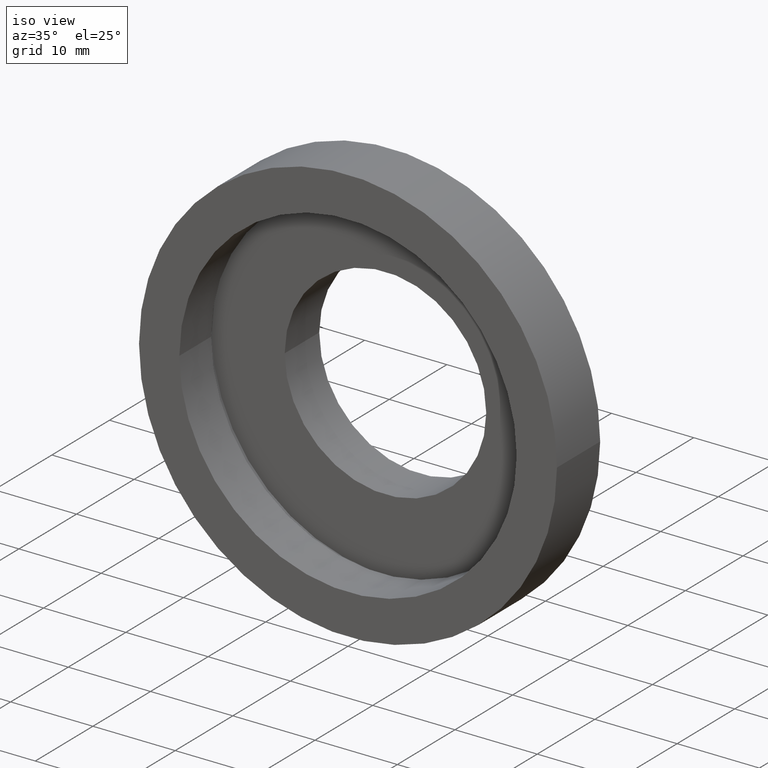
[diagram: clean part render]
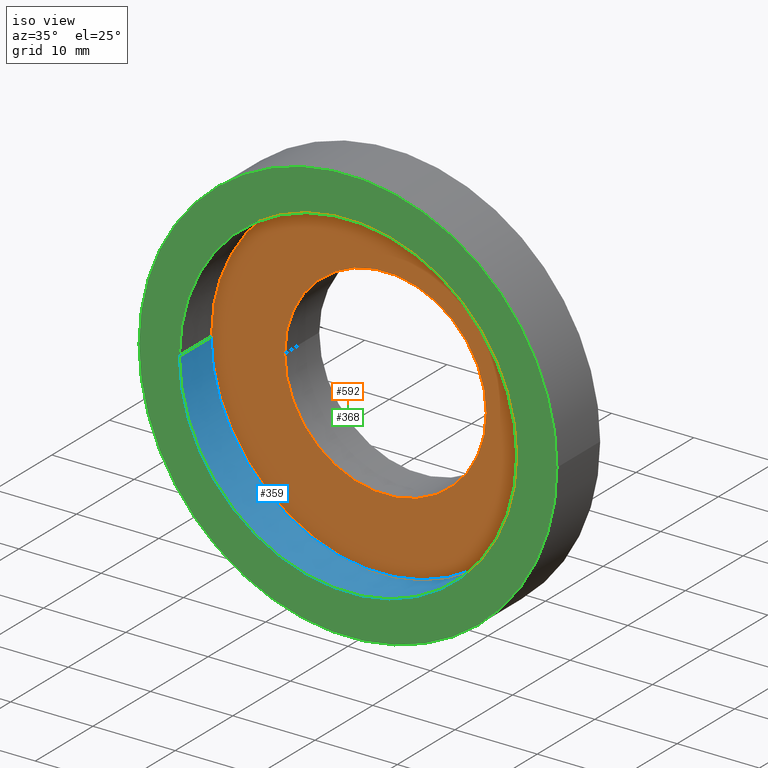
[diagram: same view with three faces highlighted in distinct colors, each labeled with its STEP entity id]
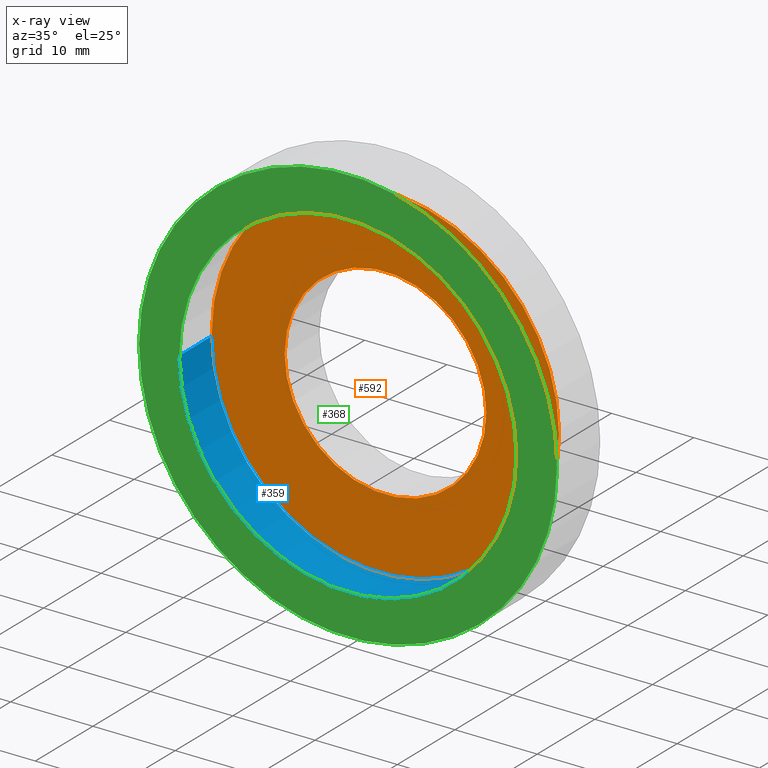
[diagram: x-ray of the same camera — body ghosted, the three highlighted faces saturated]
A machine part, iso view with three faces highlighted in distinct colors.
The next image is the same camera in x-ray (body ghosted, the three faces saturated) — at least one of them is partly hidden behind the body in this view.
Their STEP definitions:

[orange] entity #592 — the highlighted planar face has unit normal (-0, 1, 0).
#2 = ORIENTED_EDGE ( 'NONE', *, *, #453, .T. ) ;
#27 = AXIS2_PLACEMENT_3D ( 'NONE', #516, #568, #134 ) ;
#54 = EDGE_LOOP ( 'NONE', ( #67, #587 ) ) ;
#66 = DIRECTION ( 'NONE',  ( -1.224646799147351000E-016, 1.000000000000000000, -0.0000000000000000000 ) ) ;
#67 = ORIENTED_EDGE ( 'NONE', *, *, #345, .F. ) ;
#85 = CIRCLE ( 'NONE', #347, 21.10000000000000100 ) ;
#100 = EDGE_CURVE ( 'NONE', #476, #207, #85, .T. ) ;
#110 = CIRCLE ( 'NONE', #185, 12.25000000000000000 ) ;
#134 = DIRECTION ( 'NONE',  ( -1.000000000000000000, -1.224646799147351000E-016, 0.0000000000000000000 ) ) ;
#146 = DIRECTION ( 'NONE',  ( -1.000000000000000000, -1.233215741215739600E-016, 0.0000000000000000000 ) ) ;
#169 = AXIS2_PLACEMENT_3D ( 'NONE', #262, #596, #306 ) ;
#171 = VERTEX_POINT ( 'NONE', #349 ) ;
#185 = AXIS2_PLACEMENT_3D ( 'NONE', #437, #66, #410 ) ;
#197 = EDGE_LOOP ( 'NONE', ( #366, #2 ) ) ;
#207 = VERTEX_POINT ( 'NONE', #541 ) ;
#225 = AXIS2_PLACEMENT_3D ( 'NONE', #622, #346, #241 ) ;
#231 = FACE_BOUND ( 'NONE', #197, .T. ) ;
#237 = CARTESIAN_POINT ( 'NONE',  ( 21.10000000000000100, 6.500000000000000000, 2.584004746200915400E-015 ) ) ;
#241 = DIRECTION ( 'NONE',  ( -1.000000000000000000, -1.233215741215739600E-016, 0.0000000000000000000 ) ) ;
#262 = CARTESIAN_POINT ( 'NONE',  ( 1.271920398992858000E-015, 6.499999999999997300, 0.0000000000000000000 ) ) ;
#306 = DIRECTION ( 'NONE',  ( -1.000000000000000000, -1.416100796715760900E-016, 0.0000000000000000000 ) ) ;
#318 = CIRCLE ( 'NONE', #225, 21.10000000000000100 ) ;
#336 = VERTEX_POINT ( 'NONE', #432 ) ;
#345 = EDGE_CURVE ( 'NONE', #207, #476, #318, .T. ) ;
#346 = DIRECTION ( 'NONE',  ( -1.224646799147351000E-016, 1.000000000000000000, -0.0000000000000000000 ) ) ;
#347 = AXIS2_PLACEMENT_3D ( 'NONE', #364, #579, #146 ) ;
#349 = CARTESIAN_POINT ( 'NONE',  ( 12.25000000000000400, 6.499999999999999100, 1.500192328955508100E-015 ) ) ;
#364 = CARTESIAN_POINT ( 'NONE',  ( 1.271920398992858000E-015, 6.499999999999997300, 0.0000000000000000000 ) ) ;
#366 = ORIENTED_EDGE ( 'NONE', *, *, #449, .T. ) ;
#410 = DIRECTION ( 'NONE',  ( -1.000000000000000000, -1.416100796715760900E-016, 0.0000000000000000000 ) ) ;
#414 = CIRCLE ( 'NONE', #169, 12.25000000000000000 ) ;
#432 = CARTESIAN_POINT ( 'NONE',  ( -12.24999999999999800, 6.499999999999995600, 0.0000000000000000000 ) ) ;
#437 = CARTESIAN_POINT ( 'NONE',  ( 1.271920398992858000E-015, 6.499999999999997300, 0.0000000000000000000 ) ) ;
#449 = EDGE_CURVE ( 'NONE', #336, #171, #414, .T. ) ;
#453 = EDGE_CURVE ( 'NONE', #171, #336, #110, .T. ) ;
#476 = VERTEX_POINT ( 'NONE', #237 ) ;
#516 = CARTESIAN_POINT ( 'NONE',  ( 12.25000000000000200, 6.499999999999998200, 0.0000000000000000000 ) ) ;
#525 = FACE_OUTER_BOUND ( 'NONE', #54, .T. ) ;
#530 = PLANE ( 'NONE',  #27 ) ;
#541 = CARTESIAN_POINT ( 'NONE',  ( -21.10000000000000100, 6.499999999999994700, 0.0000000000000000000 ) ) ;
#568 = DIRECTION ( 'NONE',  ( -1.224646799147351000E-016, 1.000000000000000000, 0.0000000000000000000 ) ) ;
#579 = DIRECTION ( 'NONE',  ( -1.224646799147351000E-016, 1.000000000000000000, -0.0000000000000000000 ) ) ;
#587 = ORIENTED_EDGE ( 'NONE', *, *, #100, .F. ) ;
#592 = ADVANCED_FACE ( 'NONE', ( #525, #231 ), #530, .F. ) ;
#596 = DIRECTION ( 'NONE',  ( -1.224646799147351000E-016, 1.000000000000000000, -0.0000000000000000000 ) ) ;
#622 = CARTESIAN_POINT ( 'NONE',  ( 1.271920398992858000E-015, 6.499999999999997300, 0.0000000000000000000 ) ) ;

[blue] entity #359 — the highlighted cylindrical surface (partial cylindrical patch) has radius 20.5 mm, axis along (-0, 1, -0).
#23 = CARTESIAN_POINT ( 'NONE',  ( -20.50000000000000400, 16.88601823708207300, 0.0000000000000000000 ) ) ;
#26 = CARTESIAN_POINT ( 'NONE',  ( 20.50000000000000400, -9.589210137015444400E-016, 2.510525938252074500E-015 ) ) ;
#35 = EDGE_CURVE ( 'NONE', #351, #63, #70, .T. ) ;
#36 = CARTESIAN_POINT ( 'NONE',  ( -20.49999999999999600, -5.979972890205683900E-015, 0.0000000000000000000 ) ) ;
#39 = EDGE_CURVE ( 'NONE', #63, #65, #289, .T. ) ;
#58 = ORIENTED_EDGE ( 'NONE', *, *, #427, .F. ) ;
#63 = VERTEX_POINT ( 'NONE', #532 ) ;
#65 = VERTEX_POINT ( 'NONE', #186 ) ;
#70 = LINE ( 'NONE', #160, #363 ) ;
#97 = CIRCLE ( 'NONE', #291, 20.50000000000000000 ) ;
#98 = DIRECTION ( 'NONE',  ( -1.224646799147351000E-016, 1.000000000000000000, -0.0000000000000000000 ) ) ;
#106 = EDGE_LOOP ( 'NONE', ( #220, #178, #268, #58 ) ) ;
#140 = DIRECTION ( 'NONE',  ( -1.224646799147351000E-016, 1.000000000000000000, -0.0000000000000000000 ) ) ;
#160 = CARTESIAN_POINT ( 'NONE',  ( 20.50000000000000400, 16.88601823708208000, 2.510525938252074500E-015 ) ) ;
#177 = CARTESIAN_POINT ( 'NONE',  ( 1.394385078907593000E-015, 5.499999999999998200, 0.0000000000000000000 ) ) ;
#178 = ORIENTED_EDGE ( 'NONE', *, *, #35, .T. ) ;
#182 = LINE ( 'NONE', #23, #546 ) ;
#186 = CARTESIAN_POINT ( 'NONE',  ( -20.50000000000000400, 5.499999999999995600, 0.0000000000000000000 ) ) ;
#217 = AXIS2_PLACEMENT_3D ( 'NONE', #343, #583, #301 ) ;
#220 = ORIENTED_EDGE ( 'NONE', *, *, #302, .F. ) ;
#249 = CARTESIAN_POINT ( 'NONE',  ( 2.067940818438636500E-015, -3.469446951953614200E-015, 0.0000000000000000000 ) ) ;
#268 = ORIENTED_EDGE ( 'NONE', *, *, #39, .T. ) ;
#289 = CIRCLE ( 'NONE', #400, 20.50000000000000400 ) ;
#291 = AXIS2_PLACEMENT_3D ( 'NONE', #249, #485, #355 ) ;
#296 = DIRECTION ( 'NONE',  ( -1.000000000000000000, -1.269309860470834200E-016, 0.0000000000000000000 ) ) ;
#301 = DIRECTION ( 'NONE',  ( -1.000000000000000000, -1.692413147294445700E-016, 0.0000000000000000000 ) ) ;
#302 = EDGE_CURVE ( 'NONE', #351, #602, #97, .T. ) ;
#343 = CARTESIAN_POINT ( 'NONE',  ( 0.0000000000000000000, 16.88601823708207700, 0.0000000000000000000 ) ) ;
#344 = CYLINDRICAL_SURFACE ( 'NONE', #217, 20.50000000000000400 ) ;
#351 = VERTEX_POINT ( 'NONE', #26 ) ;
#355 = DIRECTION ( 'NONE',  ( -1.000000000000000000, -1.224646799147351200E-016, 0.0000000000000000000 ) ) ;
#359 = ADVANCED_FACE ( 'NONE', ( #447 ), #344, .F. ) ;
#363 = VECTOR ( 'NONE', #140, 1000.000000000000000 ) ;
#381 = DIRECTION ( 'NONE',  ( -1.224646799147351000E-016, 1.000000000000000000, -0.0000000000000000000 ) ) ;
#400 = AXIS2_PLACEMENT_3D ( 'NONE', #177, #381, #296 ) ;
#427 = EDGE_CURVE ( 'NONE', #602, #65, #182, .T. ) ;
#447 = FACE_OUTER_BOUND ( 'NONE', #106, .T. ) ;
#485 = DIRECTION ( 'NONE',  ( -1.224646799147351000E-016, 1.000000000000000000, -0.0000000000000000000 ) ) ;
#532 = CARTESIAN_POINT ( 'NONE',  ( 20.50000000000000400, 5.500000000000000900, 2.510525938252074500E-015 ) ) ;
#546 = VECTOR ( 'NONE', #98, 1000.000000000000000 ) ;
#583 = DIRECTION ( 'NONE',  ( -1.224646799147351000E-016, 1.000000000000000000, -0.0000000000000000000 ) ) ;
#602 = VERTEX_POINT ( 'NONE', #36 ) ;

[green] entity #368 — the highlighted planar face has unit normal (-0, 1, 0).
#5 = AXIS2_PLACEMENT_3D ( 'NONE', #614, #41, #569 ) ;
#9 = DIRECTION ( 'NONE',  ( -1.000000000000000000, -1.224646799147351000E-016, 0.0000000000000000000 ) ) ;
#22 = EDGE_CURVE ( 'NONE', #435, #523, #550, .T. ) ;
#24 = ORIENTED_EDGE ( 'NONE', *, *, #302, .T. ) ;
#26 = CARTESIAN_POINT ( 'NONE',  ( 20.50000000000000400, -9.589210137015444400E-016, 2.510525938252074500E-015 ) ) ;
#36 = CARTESIAN_POINT ( 'NONE',  ( -20.49999999999999600, -5.979972890205683900E-015, 0.0000000000000000000 ) ) ;
#41 = DIRECTION ( 'NONE',  ( -1.224646799147351000E-016, 1.000000000000000000, -0.0000000000000000000 ) ) ;
#57 = EDGE_LOOP ( 'NONE', ( #589, #24 ) ) ;
#97 = CIRCLE ( 'NONE', #291, 20.50000000000000000 ) ;
#111 = AXIS2_PLACEMENT_3D ( 'NONE', #380, #277, #331 ) ;
#123 = CARTESIAN_POINT ( 'NONE',  ( -25.39999999999999100, -6.580049821787884700E-015, 0.0000000000000000000 ) ) ;
#137 = CIRCLE ( 'NONE', #5, 25.39999999999999500 ) ;
#174 = EDGE_LOOP ( 'NONE', ( #603, #429 ) ) ;
#195 = AXIS2_PLACEMENT_3D ( 'NONE', #499, #531, #490 ) ;
#208 = CIRCLE ( 'NONE', #111, 20.50000000000000000 ) ;
#249 = CARTESIAN_POINT ( 'NONE',  ( 2.067940818438636500E-015, -3.469446951953614200E-015, 0.0000000000000000000 ) ) ;
#277 = DIRECTION ( 'NONE',  ( -1.224646799147351000E-016, 1.000000000000000000, -0.0000000000000000000 ) ) ;
#291 = AXIS2_PLACEMENT_3D ( 'NONE', #249, #485, #355 ) ;
#302 = EDGE_CURVE ( 'NONE', #351, #602, #97, .T. ) ;
#331 = DIRECTION ( 'NONE',  ( -1.000000000000000000, -1.224646799147351200E-016, 0.0000000000000000000 ) ) ;
#351 = VERTEX_POINT ( 'NONE', #26 ) ;
#355 = DIRECTION ( 'NONE',  ( -1.000000000000000000, -1.224646799147351200E-016, 0.0000000000000000000 ) ) ;
#368 = ADVANCED_FACE ( 'NONE', ( #551, #496 ), #548, .F. ) ;
#380 = CARTESIAN_POINT ( 'NONE',  ( 2.067940818438636500E-015, -3.469446951953614200E-015, 0.0000000000000000000 ) ) ;
#413 = AXIS2_PLACEMENT_3D ( 'NONE', #526, #517, #9 ) ;
#429 = ORIENTED_EDGE ( 'NONE', *, *, #621, .F. ) ;
#435 = VERTEX_POINT ( 'NONE', #123 ) ;
#464 = CARTESIAN_POINT ( 'NONE',  ( 25.39999999999999900, -3.588440821193433400E-016, 3.110602869834276900E-015 ) ) ;
#485 = DIRECTION ( 'NONE',  ( -1.224646799147351000E-016, 1.000000000000000000, -0.0000000000000000000 ) ) ;
#490 = DIRECTION ( 'NONE',  ( -1.000000000000000000, -1.224646799147351000E-016, 0.0000000000000000000 ) ) ;
#496 = FACE_BOUND ( 'NONE', #57, .T. ) ;
#499 = CARTESIAN_POINT ( 'NONE',  ( 25.39999999999999900, -7.703719777548943400E-031, 0.0000000000000000000 ) ) ;
#517 = DIRECTION ( 'NONE',  ( -1.224646799147351000E-016, 1.000000000000000000, -0.0000000000000000000 ) ) ;
#523 = VERTEX_POINT ( 'NONE', #464 ) ;
#526 = CARTESIAN_POINT ( 'NONE',  ( 2.067940818438636500E-015, -3.469446951953614200E-015, 0.0000000000000000000 ) ) ;
#531 = DIRECTION ( 'NONE',  ( -1.224646799147351000E-016, 1.000000000000000000, 0.0000000000000000000 ) ) ;
#542 = EDGE_CURVE ( 'NONE', #602, #351, #208, .T. ) ;
#548 = PLANE ( 'NONE',  #195 ) ;
#550 = CIRCLE ( 'NONE', #413, 25.39999999999999500 ) ;
#551 = FACE_OUTER_BOUND ( 'NONE', #174, .T. ) ;
#569 = DIRECTION ( 'NONE',  ( -1.000000000000000000, -1.224646799147351000E-016, 0.0000000000000000000 ) ) ;
#589 = ORIENTED_EDGE ( 'NONE', *, *, #542, .T. ) ;
#602 = VERTEX_POINT ( 'NONE', #36 ) ;
#603 = ORIENTED_EDGE ( 'NONE', *, *, #22, .F. ) ;
#614 = CARTESIAN_POINT ( 'NONE',  ( 2.067940818438636500E-015, -3.469446951953614200E-015, 0.0000000000000000000 ) ) ;
#621 = EDGE_CURVE ( 'NONE', #523, #435, #137, .T. ) ;